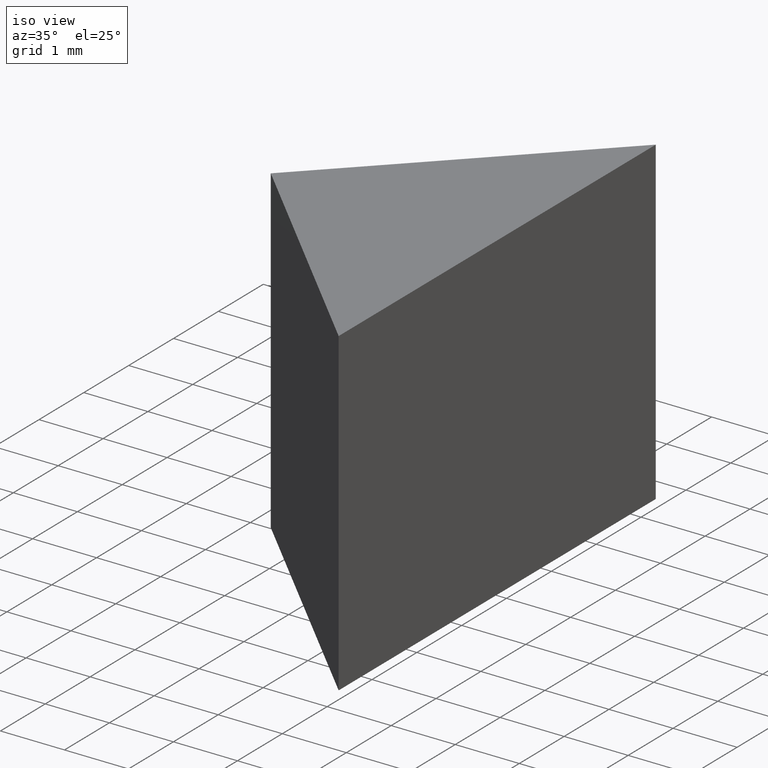
[diagram: clean part render]
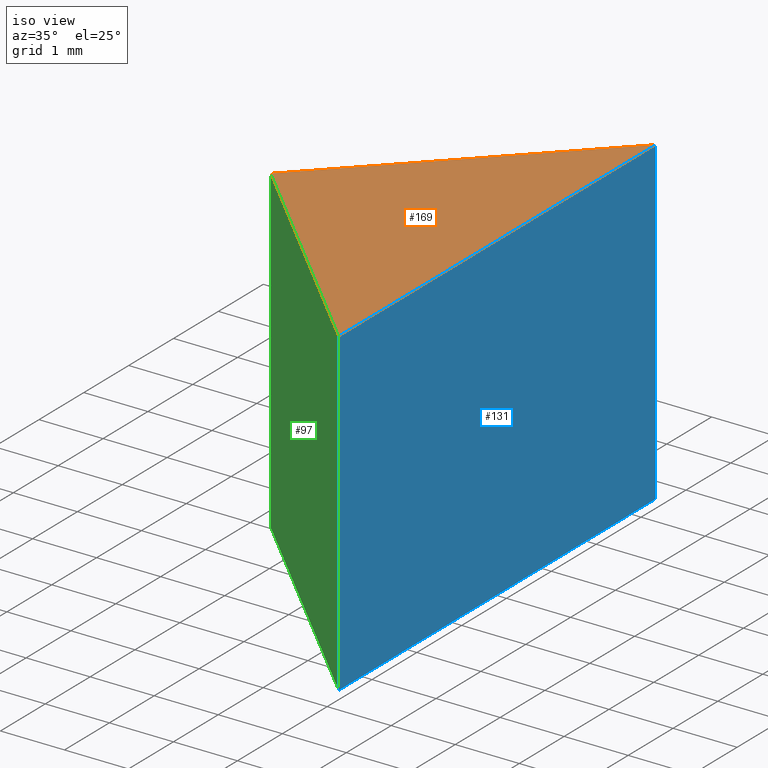
[diagram: same view with three faces highlighted in distinct colors, each labeled with its STEP entity id]
A machine part, iso view with three faces highlighted in distinct colors.
Their STEP definitions:

[orange] entity #169 — the highlighted planar face has unit normal (-0, 0, 1).
#2 = EDGE_LOOP ( 'NONE', ( #149, #57, #53 ) ) ;
#8 = FACE_OUTER_BOUND ( 'NONE', #2, .T. ) ;
#9 = PLANE ( 'NONE',  #76 ) ;
#11 = EDGE_CURVE ( 'NONE', #19, #111, #126, .T. ) ;
#14 = CARTESIAN_POINT ( 'NONE',  ( 55.47666995259492500, 13.77569255283406200, 5.000000000000000000 ) ) ;
#19 = VERTEX_POINT ( 'NONE', #146 ) ;
#27 = DIRECTION ( 'NONE',  ( 1.962615573354719300E-015, 1.000000000000000000, 0.0000000000000000000 ) ) ;
#29 = CARTESIAN_POINT ( 'NONE',  ( 59.01220385852765600, 10.24015864690132300, 5.000000000000000000 ) ) ;
#38 = DIRECTION ( 'NONE',  ( 1.000000000000000000, 0.0000000000000000000, 0.0000000000000000000 ) ) ;
#42 = VECTOR ( 'NONE', #27, 1000.000000000000000 ) ;
#48 = CARTESIAN_POINT ( 'NONE',  ( 55.47666995259492500, 13.77569255283406200, 5.000000000000000000 ) ) ;
#53 = ORIENTED_EDGE ( 'NONE', *, *, #11, .T. ) ;
#57 = ORIENTED_EDGE ( 'NONE', *, *, #58, .T. ) ;
#58 = EDGE_CURVE ( 'NONE', #100, #19, #155, .T. ) ;
#71 = EDGE_CURVE ( 'NONE', #111, #100, #118, .T. ) ;
#76 = AXIS2_PLACEMENT_3D ( 'NONE', #166, #158, #38 ) ;
#79 = DIRECTION ( 'NONE',  ( 0.7071067811865468000, -0.7071067811865483500, 0.0000000000000000000 ) ) ;
#94 = CARTESIAN_POINT ( 'NONE',  ( 59.01220385852765600, 10.24015864690132300, 5.000000000000000000 ) ) ;
#100 = VERTEX_POINT ( 'NONE', #29 ) ;
#105 = VECTOR ( 'NONE', #79, 999.9999999999998900 ) ;
#109 = VECTOR ( 'NONE', #157, 999.9999999999998900 ) ;
#111 = VERTEX_POINT ( 'NONE', #116 ) ;
#116 = CARTESIAN_POINT ( 'NONE',  ( 55.47666995259492500, 13.77569255283406200, 5.000000000000000000 ) ) ;
#118 = LINE ( 'NONE', #14, #105 ) ;
#126 = LINE ( 'NONE', #48, #109 ) ;
#146 = CARTESIAN_POINT ( 'NONE',  ( 59.01220385852767000, 17.31122645876679700, 5.000000000000000000 ) ) ;
#149 = ORIENTED_EDGE ( 'NONE', *, *, #71, .T. ) ;
#155 = LINE ( 'NONE', #94, #42 ) ;
#157 = DIRECTION ( 'NONE',  ( -0.7071067811865486800, -0.7071067811865464600, -0.0000000000000000000 ) ) ;
#158 = DIRECTION ( 'NONE',  ( -0.0000000000000000000, 0.0000000000000000000, 1.000000000000000000 ) ) ;
#166 = CARTESIAN_POINT ( 'NONE',  ( 0.0000000000000000000, 0.0000000000000000000, 5.000000000000000000 ) ) ;
#169 = ADVANCED_FACE ( 'NONE', ( #8 ), #9, .T. ) ;

[blue] entity #131 — the highlighted planar face has unit normal (-1, 0, 0).
#4 = VERTEX_POINT ( 'NONE', #12 ) ;
#6 = ORIENTED_EDGE ( 'NONE', *, *, #136, .T. ) ;
#10 = CARTESIAN_POINT ( 'NONE',  ( 59.01220385852765600, 10.24015864690132300, 0.0000000000000000000 ) ) ;
#12 = CARTESIAN_POINT ( 'NONE',  ( 59.01220385852767000, 17.31122645876679700, 0.0000000000000000000 ) ) ;
#19 = VERTEX_POINT ( 'NONE', #146 ) ;
#22 = CARTESIAN_POINT ( 'NONE',  ( 59.01220385852765600, 10.24015864690132300, 5.000000000000000000 ) ) ;
#24 = PLANE ( 'NONE',  #32 ) ;
#27 = DIRECTION ( 'NONE',  ( 1.962615573354719300E-015, 1.000000000000000000, 0.0000000000000000000 ) ) ;
#28 = VECTOR ( 'NONE', #63, 1000.000000000000000 ) ;
#29 = CARTESIAN_POINT ( 'NONE',  ( 59.01220385852765600, 10.24015864690132300, 5.000000000000000000 ) ) ;
#32 = AXIS2_PLACEMENT_3D ( 'NONE', #96, #114, #35 ) ;
#35 = DIRECTION ( 'NONE',  ( -1.962615573354719300E-015, -1.000000000000000000, 0.0000000000000000000 ) ) ;
#42 = VECTOR ( 'NONE', #27, 1000.000000000000000 ) ;
#45 = LINE ( 'NONE', #22, #141 ) ;
#49 = DIRECTION ( 'NONE',  ( -0.0000000000000000000, -0.0000000000000000000, -1.000000000000000000 ) ) ;
#58 = EDGE_CURVE ( 'NONE', #100, #19, #155, .T. ) ;
#63 = DIRECTION ( 'NONE',  ( -0.0000000000000000000, -0.0000000000000000000, -1.000000000000000000 ) ) ;
#67 = EDGE_CURVE ( 'NONE', #19, #4, #70, .T. ) ;
#70 = LINE ( 'NONE', #92, #28 ) ;
#83 = ORIENTED_EDGE ( 'NONE', *, *, #58, .F. ) ;
#92 = CARTESIAN_POINT ( 'NONE',  ( 59.01220385852767000, 17.31122645876679700, 5.000000000000000000 ) ) ;
#94 = CARTESIAN_POINT ( 'NONE',  ( 59.01220385852765600, 10.24015864690132300, 5.000000000000000000 ) ) ;
#95 = VECTOR ( 'NONE', #127, 1000.000000000000000 ) ;
#96 = CARTESIAN_POINT ( 'NONE',  ( 59.01220385852765600, 10.24015864690132300, 5.000000000000000000 ) ) ;
#100 = VERTEX_POINT ( 'NONE', #29 ) ;
#110 = CARTESIAN_POINT ( 'NONE',  ( 59.01220385852765600, 10.24015864690132300, 0.0000000000000000000 ) ) ;
#114 = DIRECTION ( 'NONE',  ( -1.000000000000000000, 1.962615573354719300E-015, 0.0000000000000000000 ) ) ;
#127 = DIRECTION ( 'NONE',  ( 1.962615573354719300E-015, 1.000000000000000000, 0.0000000000000000000 ) ) ;
#131 = ADVANCED_FACE ( 'NONE', ( #151 ), #24, .F. ) ;
#135 = VERTEX_POINT ( 'NONE', #10 ) ;
#136 = EDGE_CURVE ( 'NONE', #135, #4, #138, .T. ) ;
#138 = LINE ( 'NONE', #110, #95 ) ;
#141 = VECTOR ( 'NONE', #49, 1000.000000000000000 ) ;
#146 = CARTESIAN_POINT ( 'NONE',  ( 59.01220385852767000, 17.31122645876679700, 5.000000000000000000 ) ) ;
#150 = ORIENTED_EDGE ( 'NONE', *, *, #152, .T. ) ;
#151 = FACE_OUTER_BOUND ( 'NONE', #163, .T. ) ;
#152 = EDGE_CURVE ( 'NONE', #100, #135, #45, .T. ) ;
#155 = LINE ( 'NONE', #94, #42 ) ;
#159 = ORIENTED_EDGE ( 'NONE', *, *, #67, .F. ) ;
#163 = EDGE_LOOP ( 'NONE', ( #6, #159, #83, #150 ) ) ;

[green] entity #97 — the highlighted planar face has unit normal (0.7071, 0.7071, -0).
#10 = CARTESIAN_POINT ( 'NONE',  ( 59.01220385852765600, 10.24015864690132300, 0.0000000000000000000 ) ) ;
#13 = VERTEX_POINT ( 'NONE', #61 ) ;
#14 = CARTESIAN_POINT ( 'NONE',  ( 55.47666995259492500, 13.77569255283406200, 5.000000000000000000 ) ) ;
#20 = LINE ( 'NONE', #160, #133 ) ;
#22 = CARTESIAN_POINT ( 'NONE',  ( 59.01220385852765600, 10.24015864690132300, 5.000000000000000000 ) ) ;
#23 = CARTESIAN_POINT ( 'NONE',  ( 55.47666995259492500, 13.77569255283406200, 5.000000000000000000 ) ) ;
#29 = CARTESIAN_POINT ( 'NONE',  ( 59.01220385852765600, 10.24015864690132300, 5.000000000000000000 ) ) ;
#31 = AXIS2_PLACEMENT_3D ( 'NONE', #59, #103, #156 ) ;
#33 = LINE ( 'NONE', #23, #46 ) ;
#37 = EDGE_LOOP ( 'NONE', ( #41, #68, #137, #87 ) ) ;
#40 = EDGE_CURVE ( 'NONE', #111, #13, #33, .T. ) ;
#41 = ORIENTED_EDGE ( 'NONE', *, *, #124, .T. ) ;
#45 = LINE ( 'NONE', #22, #141 ) ;
#46 = VECTOR ( 'NONE', #128, 1000.000000000000000 ) ;
#49 = DIRECTION ( 'NONE',  ( -0.0000000000000000000, -0.0000000000000000000, -1.000000000000000000 ) ) ;
#50 = PLANE ( 'NONE',  #31 ) ;
#59 = CARTESIAN_POINT ( 'NONE',  ( 55.47666995259492500, 13.77569255283406200, 5.000000000000000000 ) ) ;
#61 = CARTESIAN_POINT ( 'NONE',  ( 55.47666995259492500, 13.77569255283406200, 0.0000000000000000000 ) ) ;
#68 = ORIENTED_EDGE ( 'NONE', *, *, #152, .F. ) ;
#69 = DIRECTION ( 'NONE',  ( 0.7071067811865468000, -0.7071067811865483500, 0.0000000000000000000 ) ) ;
#71 = EDGE_CURVE ( 'NONE', #111, #100, #118, .T. ) ;
#79 = DIRECTION ( 'NONE',  ( 0.7071067811865468000, -0.7071067811865483500, 0.0000000000000000000 ) ) ;
#87 = ORIENTED_EDGE ( 'NONE', *, *, #40, .T. ) ;
#93 = FACE_OUTER_BOUND ( 'NONE', #37, .T. ) ;
#97 = ADVANCED_FACE ( 'NONE', ( #93 ), #50, .F. ) ;
#100 = VERTEX_POINT ( 'NONE', #29 ) ;
#103 = DIRECTION ( 'NONE',  ( 0.7071067811865483500, 0.7071067811865468000, -0.0000000000000000000 ) ) ;
#105 = VECTOR ( 'NONE', #79, 999.9999999999998900 ) ;
#111 = VERTEX_POINT ( 'NONE', #116 ) ;
#116 = CARTESIAN_POINT ( 'NONE',  ( 55.47666995259492500, 13.77569255283406200, 5.000000000000000000 ) ) ;
#118 = LINE ( 'NONE', #14, #105 ) ;
#124 = EDGE_CURVE ( 'NONE', #13, #135, #20, .T. ) ;
#128 = DIRECTION ( 'NONE',  ( -0.0000000000000000000, -0.0000000000000000000, -1.000000000000000000 ) ) ;
#133 = VECTOR ( 'NONE', #69, 999.9999999999998900 ) ;
#135 = VERTEX_POINT ( 'NONE', #10 ) ;
#137 = ORIENTED_EDGE ( 'NONE', *, *, #71, .F. ) ;
#141 = VECTOR ( 'NONE', #49, 1000.000000000000000 ) ;
#152 = EDGE_CURVE ( 'NONE', #100, #135, #45, .T. ) ;
#156 = DIRECTION ( 'NONE',  ( -0.7071067811865468000, 0.7071067811865483500, 0.0000000000000000000 ) ) ;
#160 = CARTESIAN_POINT ( 'NONE',  ( 55.47666995259492500, 13.77569255283406200, 0.0000000000000000000 ) ) ;